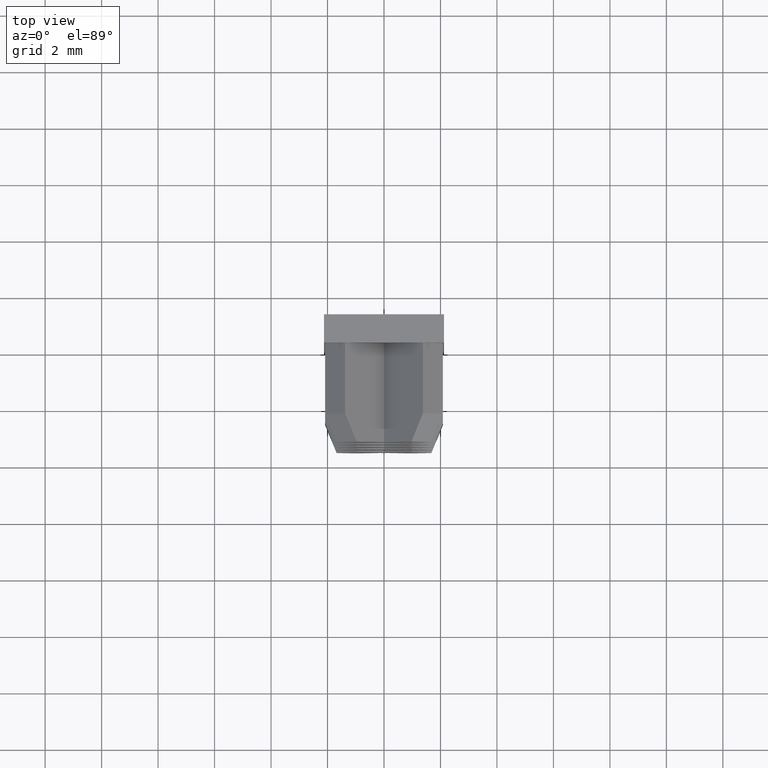
[diagram: clean part render]
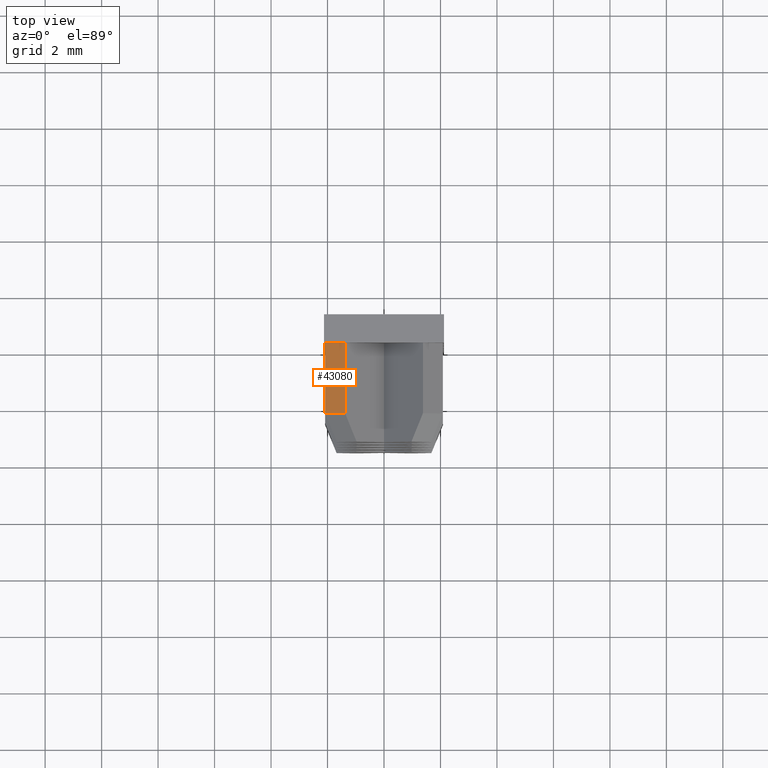
[diagram: same view with one face highlighted and labeled with its STEP entity id]
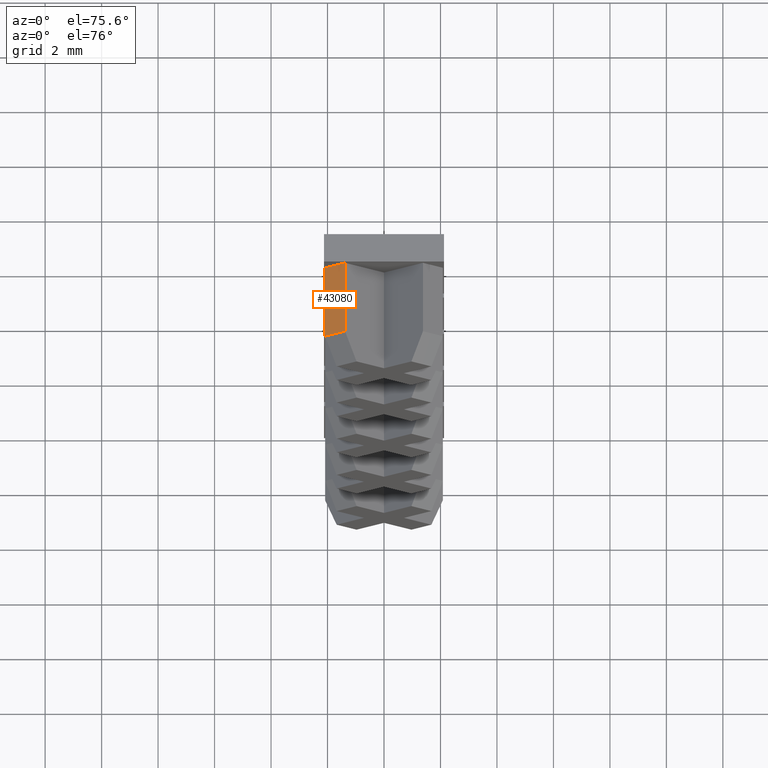
[diagram: same view with one face highlighted and labeled with its STEP entity id]
A machine part, top view. The second image highlights one B-rep face of the part: STEP entity #43080.
A second angle (auxiliary view) of the same face is appended — the face is thin or edge-on in the first view.
In plain terms, the highlighted planar face has unit normal (-0.7071, -0, 0.7071).
Its self-contained STEP definition (entity closure, byte-faithful):
#26470=CARTESIAN_POINT('',(13.0783091132231,-9.15000000000323,
73.7559650045003));
#26480=VERTEX_POINT('',#26470);
#26510=CARTESIAN_POINT('',(14.1484164161272,-9.15000000000323,
74.8260723074044));
#26520=DIRECTION('',(-0.707106781186548,0.,-0.707106781186547));
#26530=VECTOR('',#26520,1.);
#26540=LINE('',#26510,#26530);
#26550=CARTESIAN_POINT('',(12.3712023320366,-9.15000000000323,
73.0488582233138));
#26560=VERTEX_POINT('',#26550);
#26570=EDGE_CURVE('',#26480,#26560,#26540,.T.);
#42340=CARTESIAN_POINT('',(14.1484164161272,-11.6500000000046,
74.8260723074041));
#42350=DIRECTION('',(-0.707106781186548,-8.15458811587178E-14,
-0.707106781186547));
#42360=VECTOR('',#42350,1.);
#42370=LINE('',#42340,#42360);
#42380=CARTESIAN_POINT('',(13.0783091132234,-11.6500000000047,
73.7559650045003));
#42390=VERTEX_POINT('',#42380);
#42400=CARTESIAN_POINT('',(12.3712023320369,-11.6500000000048,
73.0488582233138));
#42410=VERTEX_POINT('',#42400);
#42420=EDGE_CURVE('',#42390,#42410,#42370,.T.);
#42760=CARTESIAN_POINT('',(13.0783091132234,-11.4157999825918,
73.7559650045003));
#42770=DIRECTION('',(-1.15463194561016E-13,1.,2.78904447747367E-31));
#42780=VECTOR('',#42770,1.);
#42790=LINE('',#42760,#42780);
#42800=EDGE_CURVE('',#42390,#26480,#42790,.T.);
#42920=CARTESIAN_POINT('',(12.3712023320366,-9.15000000000481,
73.0488582233138));
#42930=DIRECTION('',(-0.707106781186547,-8.16448078515563E-14,
0.707106781186548));
#42940=DIRECTION('',(-0.707106781186548,-8.16448078515563E-14,
-0.707106781186547));
#42950=AXIS2_PLACEMENT_3D('',#42920,#42930,#42940);
#42960=PLANE('',#42950);
#42970=CARTESIAN_POINT('',(12.3712023320368,-11.4157999825918,
73.0488582233138));
#42980=DIRECTION('',(1.15463194561016E-13,-1.,-1.6734266864842E-30));
#42990=VECTOR('',#42980,1.);
#43000=LINE('',#42970,#42990);
#43010=EDGE_CURVE('',#26560,#42410,#43000,.T.);
#43020=ORIENTED_EDGE('',*,*,#43010,.T.);
#43030=ORIENTED_EDGE('',*,*,#26570,.T.);
#43040=ORIENTED_EDGE('',*,*,#42800,.T.);
#43050=ORIENTED_EDGE('',*,*,#42420,.F.);
#43060=EDGE_LOOP('',(#43050,#43040,#43030,#43020));
#43070=FACE_OUTER_BOUND('',#43060,.T.);
#43080=ADVANCED_FACE('',(#43070),#42960,.T.);